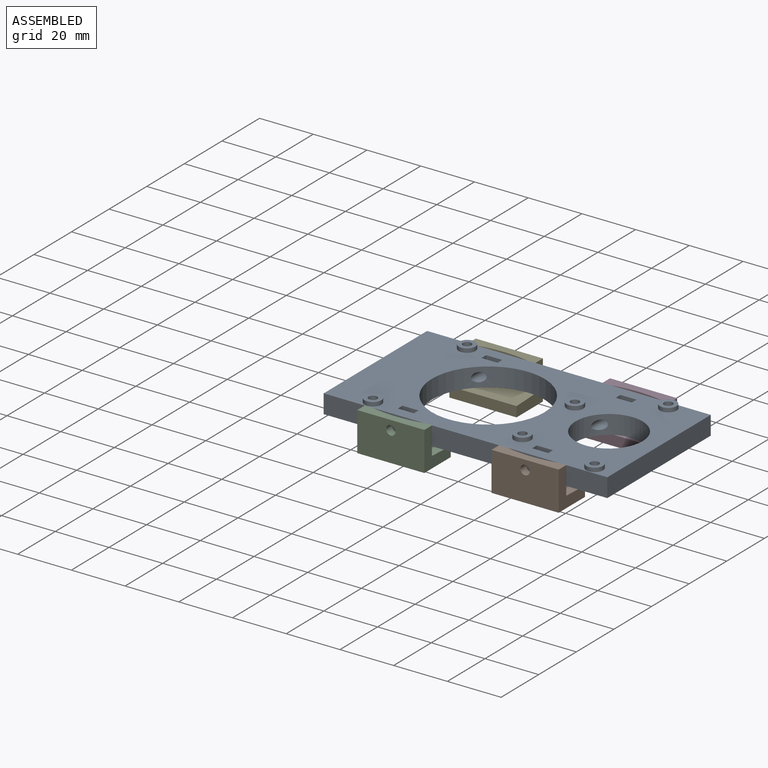
[diagram: assembled view]
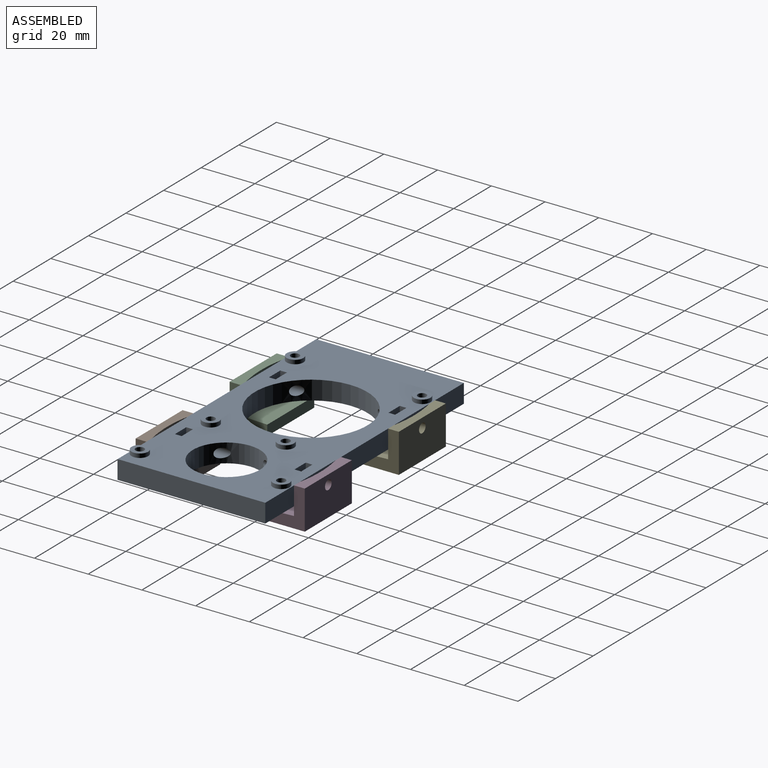
[diagram: assembled view, second angle]
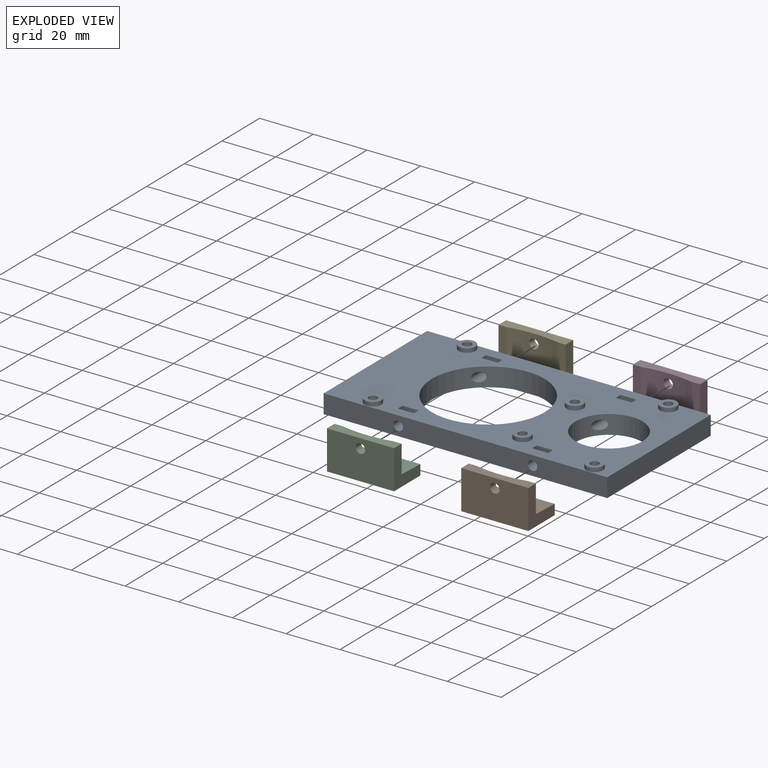
[diagram: exploded view]
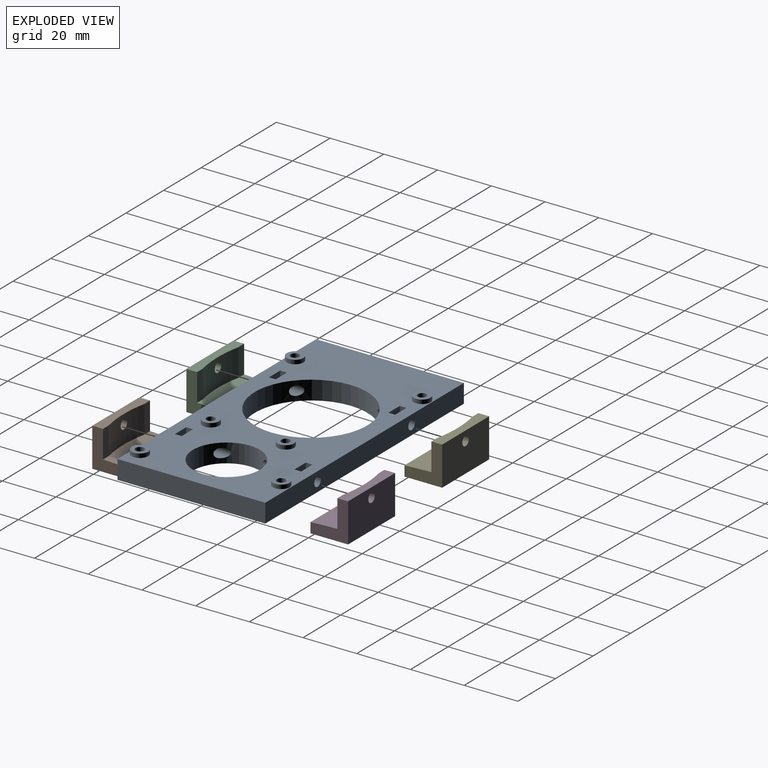
[diagram: exploded view, second angle]
ASSEMBLY  parts=5 mates=4
PART A: 92 faces, bbox 105.6x55x8.5 mm
  f0: plane 105.6x55mm, normal (0,0,-1), area 3684.6mm2, adj f8,f9,f10,f11,f12,f13,f26,f27
  f1: cylinder r=1.6mm len=4.5mm, axis (0,0,-1), area 45.2mm2, adj f15,f83
  f2: cylinder r=1.6mm len=4.5mm, axis (0,0,-1), area 45.2mm2, adj f17,f76
  f3: cylinder r=1.6mm len=4.5mm, axis (0,0,-1), area 45.2mm2, adj f19,f69
  f4: cylinder r=1.6mm len=4.5mm, axis (0,0,-1), area 45.2mm2, adj f21,f62
  f5: cylinder r=1.6mm len=4.5mm, axis (0,0,-1), area 45.2mm2, adj f23,f55
  f6: cylinder r=1.6mm len=4.5mm, axis (0,0,-1), area 45.2mm2, adj f25,f48
  f7: plane 105.6x55mm, normal (0,0,1), area 3690.5mm2, adj f8,f9,f10,f11,f12,f13,f14,f16
  f8: plane 55x7mm, normal (-1,0,0), area 385mm2, adj f0,f7,f9,f13
  f9: plane 105.6x7mm, normal (0,-1,0), area 720mm2, adj f0,f7,f8,f10,f85,f89
  f10: plane 55x7mm, normal (1,0,0), area 385mm2, adj f0,f7,f9,f13
  f11: cylinder r=21mm len=42mm, axis (0,0,-1), area 897.3mm2, adj f0,f7,f87,f88
  f12: cylinder r=12.5mm len=25mm, axis (0,0,-1), area 520.5mm2, adj f0,f7,f84,f91
  f13: plane 105.6x7mm, normal (0,1,0), area 720mm2, adj f0,f7,f8,f10,f86,f90
  f14: cylinder r=3.1mm len=6.2mm, axis (0,0,-1), area 29.2mm2, adj f7,f15
  f15: plane 6.2x6.2mm, normal (0,0,1), area 22.1mm2, adj f1,f14
  f16: cylinder r=3.1mm len=6.2mm, axis (0,0,-1), area 29.2mm2, adj f7,f17
  f17: plane 6.2x6.2mm, normal (0,0,1), area 22.1mm2, adj f2,f16
  f18: cylinder r=3.1mm len=6.2mm, axis (0,0,-1), area 29.2mm2, adj f7,f19
  f19: plane 6.2x6.2mm, normal (0,0,1), area 22.1mm2, adj f3,f18
  f20: cylinder r=3.1mm len=6.2mm, axis (0,0,-1), area 29.2mm2, adj f7,f21
  f21: plane 6.2x6.2mm, normal (0,0,1), area 22.1mm2, adj f4,f20
  f22: cylinder r=3.1mm len=6.2mm, axis (0,0,-1), area 29.2mm2, adj f7,f23
  f23: plane 6.2x6.2mm, normal (0,0,1), area 22.1mm2, adj f5,f22
  f24: cylinder r=3.1mm len=6.2mm, axis (0,0,-1), area 29.2mm2, adj f7,f25
  f25: plane 6.2x6.2mm, normal (0,0,1), area 22.1mm2, adj f6,f24
  f26: plane 7x6mm, normal (0,1,0), area 32.4mm2, adj f0,f7,f27,f29,f91
  f27: plane 7x2.5mm, normal (-1,0,0), area 17.5mm2, adj f0,f7,f26,f28
  f28: plane 7x6mm, normal (0,-1,0), area 32.4mm2, adj f0,f7,f27,f29,f90
  f29: plane 7x2.5mm, normal (1,0,0), area 17.5mm2, adj f0,f7,f26,f28
  f30: plane 7x6mm, normal (0,1,0), area 32.4mm2, adj f0,f7,f31,f33,f89
  f31: plane 7x2.5mm, normal (-1,0,0), area 17.5mm2, adj f0,f7,f30,f32
  f32: plane 7x6mm, normal (0,-1,0), area 32.4mm2, adj f0,f7,f31,f33,f88
  f33: plane 7x2.5mm, normal (1,0,0), area 17.5mm2, adj f0,f7,f30,f32
  f34: plane 7x6mm, normal (0,1,0), area 32.4mm2, adj f0,f7,f35,f37,f87
  f35: plane 7x2.5mm, normal (-1,0,0), area 17.5mm2, adj f0,f7,f34,f36
  f36: plane 7x6mm, normal (0,-1,0), area 32.4mm2, adj f0,f7,f35,f37,f86
  f37: plane 7x2.5mm, normal (1,0,0), area 17.5mm2, adj f0,f7,f34,f36
  f38: plane 7x6mm, normal (0,1,0), area 32.4mm2, adj f0,f7,f39,f41,f85
  f39: plane 7x2.5mm, normal (-1,0,0), area 17.5mm2, adj f0,f7,f38,f40
  f40: plane 7x6mm, normal (0,-1,0), area 32.4mm2, adj f0,f7,f39,f41,f84
  f41: plane 7x2.5mm, normal (1,0,0), area 17.5mm2, adj f0,f7,f38,f40
  f42: plane 4x3mm, normal (-0.87,-0.5,0), area 13.9mm2, adj f0,f43,f47,f48
  f43: plane 4x3mm, normal (-0.87,0.5,0), area 13.9mm2, adj f0,f42,f44,f48
  f44: plane 4x3.46mm, normal (0,1,0), area 13.9mm2, adj f0,f43,f45,f48
  f45: plane 4x3mm, normal (0.87,0.5,0), area 13.9mm2, adj f0,f44,f46,f48
  f46: plane 4x3mm, normal (0.87,-0.5,0), area 13.9mm2, adj f0,f45,f47,f48
  f47: plane 4x3.46mm, normal (0,-1,0), area 13.9mm2, adj f0,f42,f46,f48
  f48: plane 6.93x6mm, normal (0,0,-1), area 23.1mm2, adj f6,f42,f43,f44,f45,f46,f47
  f49: plane 4x3mm, normal (0.87,0.5,0), area 13.9mm2, adj f0,f50,f54,f55
  f50: plane 4x3mm, normal (0.87,-0.5,0), area 13.9mm2, adj f0,f49,f51,f55
  f51: plane 4x3.46mm, normal (0,-1,0), area 13.9mm2, adj f0,f50,f52,f55
  f52: plane 4x3mm, normal (-0.87,-0.5,0), area 13.9mm2, adj f0,f51,f53,f55
  f53: plane 4x3mm, normal (-0.87,0.5,0), area 13.9mm2, adj f0,f52,f54,f55
  f54: plane 4x3.46mm, normal (0,1,0), area 13.9mm2, adj f0,f49,f53,f55
  f55: plane 6.93x6mm, normal (0,0,-1), area 23.1mm2, adj f5,f49,f50,f51,f52,f53,f54
  f56: plane 4x3mm, normal (0.5,-0.87,0), area 13.9mm2, adj f0,f57,f61,f62
  f57: plane 4x3mm, normal (-0.5,-0.87,0), area 13.9mm2, adj f0,f56,f58,f62
  f58: plane 4x3.46mm, normal (-1,0,0), area 13.9mm2, adj f0,f57,f59,f62
  f59: plane 4x3mm, normal (-0.5,0.87,0), area 13.9mm2, adj f0,f58,f60,f62
  f60: plane 4x3mm, normal (0.5,0.87,0), area 13.9mm2, adj f0,f59,f61,f62
  f61: plane 4x3.46mm, normal (1,0,0), area 13.9mm2, adj f0,f56,f60,f62
  f62: plane 6.93x6mm, normal (0,0,-1), area 23.1mm2, adj f4,f56,f57,f58,f59,f60,f61
  f63: plane 4x3mm, normal (0.5,-0.87,0), area 13.9mm2, adj f0,f64,f68,f69
  f64: plane 4x3mm, normal (-0.5,-0.87,0), area 13.9mm2, adj f0,f63,f65,f69
  f65: plane 4x3.46mm, normal (-1,0,0), area 13.9mm2, adj f0,f64,f66,f69
  f66: plane 4x3mm, normal (-0.5,0.87,0), area 13.9mm2, adj f0,f65,f67,f69
  f67: plane 4x3mm, normal (0.5,0.87,0), area 13.9mm2, adj f0,f66,f68,f69
  f68: plane 4x3.46mm, normal (1,0,0), area 13.9mm2, adj f0,f63,f67,f69
  f69: plane 6.93x6mm, normal (0,0,-1), area 23.1mm2, adj f3,f63,f64,f65,f66,f67,f68
  f70: plane 4x3mm, normal (0.87,0.5,0), area 13.9mm2, adj f0,f71,f75,f76
  f71: plane 4x3mm, normal (0.87,-0.5,0), area 13.9mm2, adj f0,f70,f72,f76
  f72: plane 4x3.46mm, normal (0,-1,0), area 13.9mm2, adj f0,f71,f73,f76
  f73: plane 4x3mm, normal (-0.87,-0.5,0), area 13.9mm2, adj f0,f72,f74,f76
  f74: plane 4x3mm, normal (-0.87,0.5,0), area 13.9mm2, adj f0,f73,f75,f76
  f75: plane 4x3.46mm, normal (0,1,0), area 13.9mm2, adj f0,f70,f74,f76
  f76: plane 6.93x6mm, normal (0,0,-1), area 23.1mm2, adj f2,f70,f71,f72,f73,f74,f75
  f77: plane 4x3mm, normal (0.87,-0.5,0), area 13.9mm2, adj f0,f78,f82,f83
  f78: plane 4x3.46mm, normal (0,-1,0), area 13.9mm2, adj f0,f77,f79,f83
  f79: plane 4x3mm, normal (-0.87,-0.5,0), area 13.9mm2, adj f0,f78,f80,f83
  f80: plane 4x3mm, normal (-0.87,0.5,0), area 13.9mm2, adj f0,f79,f81,f83
  f81: plane 4x3.46mm, normal (0,1,0), area 13.9mm2, adj f0,f80,f82,f83
  f82: plane 4x3mm, normal (0.87,0.5,0), area 13.9mm2, adj f0,f77,f81,f83
  f83: plane 6.93x6mm, normal (0,0,-1), area 23.1mm2, adj f1,f77,f78,f79,f80,f81,f82
  f84: cylinder r=1.75mm len=14.97mm, axis (0,1,0), area 140.2mm2, adj f12,f40
  f85: cylinder r=1.75mm len=4mm, axis (0,1,0), area 44mm2, adj f9,f38
  f86: cylinder r=1.75mm len=4mm, axis (0,1,0), area 44mm2, adj f13,f36
  f87: cylinder r=1.75mm len=7.34mm, axis (0,1,0), area 61.8mm2, adj f11,f34
  f88: cylinder r=1.75mm len=7.34mm, axis (0,1,0), area 61.8mm2, adj f11,f32
  f89: cylinder r=1.75mm len=4mm, axis (0,1,0), area 44mm2, adj f9,f30
  f90: cylinder r=1.75mm len=4mm, axis (0,1,0), area 44mm2, adj f13,f28
  f91: cylinder r=1.75mm len=14.97mm, axis (0,1,0), area 140.2mm2, adj f12,f26
PART B: 12 faces, bbox 14x25x14.5 mm
  f0: plane 10.3x3mm, normal (1,0,0), area 30.9mm2, adj f2,f4,f7,f10
  f1: plane 25x3.8mm, normal (1,0,0), area 95mm2, adj f2,f6,f7,f8
  f2: plane 25x10mm, normal (0.04,0,1), area 250.2mm2, adj f0,f1,f3,f7,f8,f11
  f3: plane 10.3x3mm, normal (1,0,0), area 30.9mm2, adj f2,f4,f8,f10
  f4: plane 25x4mm, normal (0,0,1), area 87.3mm2, adj f0,f3,f5,f7,f8,f10
  f5: plane 25x14.5mm, normal (-1,0,0), area 352.9mm2, adj f4,f6,f7,f8,f9
  f6: plane 25x14mm, normal (0,0,-1), area 350mm2, adj f1,f5,f7,f8
  f7: plane 14.5x14mm, normal (0,-1,0), area 98mm2, adj f0,f1,f2,f4,f5,f6
  f8: plane 14.5x14mm, normal (0,1,0), area 98mm2, adj f1,f2,f3,f4,f5,f6
  f9: cylinder r=1.75mm len=3.5mm, axis (-1,0,0), area 33.2mm2, adj f5,f10
  f10: cylinder r=45.62mm len=19mm, axis (0,0,1), area 187.5mm2, adj f0,f3,f4,f9,f11
  f11: plane 19x1mm, normal (0,0,1), area 12.7mm2, adj f2,f10
PART C: same geometry as B
PART D: same geometry as B
PART E: same geometry as B
PLACE A t=(-7.98,-19.28,2.79)mm
PLACE B rot(axis=(0,0,1),90deg) t=(55.32,-24.13,-4.71)mm
PLACE C rot(axis=(0,0,1),90deg) t=(5.32,-24.13,-4.71)mm
PLACE D rot(axis=(0,0,-1),90deg) t=(80.32,38.87,-4.71)mm
PLACE E rot(axis=(0,0,-1),90deg) t=(30.32,38.87,-4.71)mm
MATE fastened B.f9 <-> A.f84  axis (0,-1,0) through (67.82,-24.13,6.29)mm
MATE fastened C.f9 <-> A.f86  axis (0,-1,0) through (17.82,-24.13,6.29)mm
MATE fastened E.f9 <-> A.f86  axis (0,1,0) through (17.82,38.87,6.29)mm
MATE fastened D.f9 <-> A.f84  axis (0,1,0) through (67.82,38.87,6.29)mm
